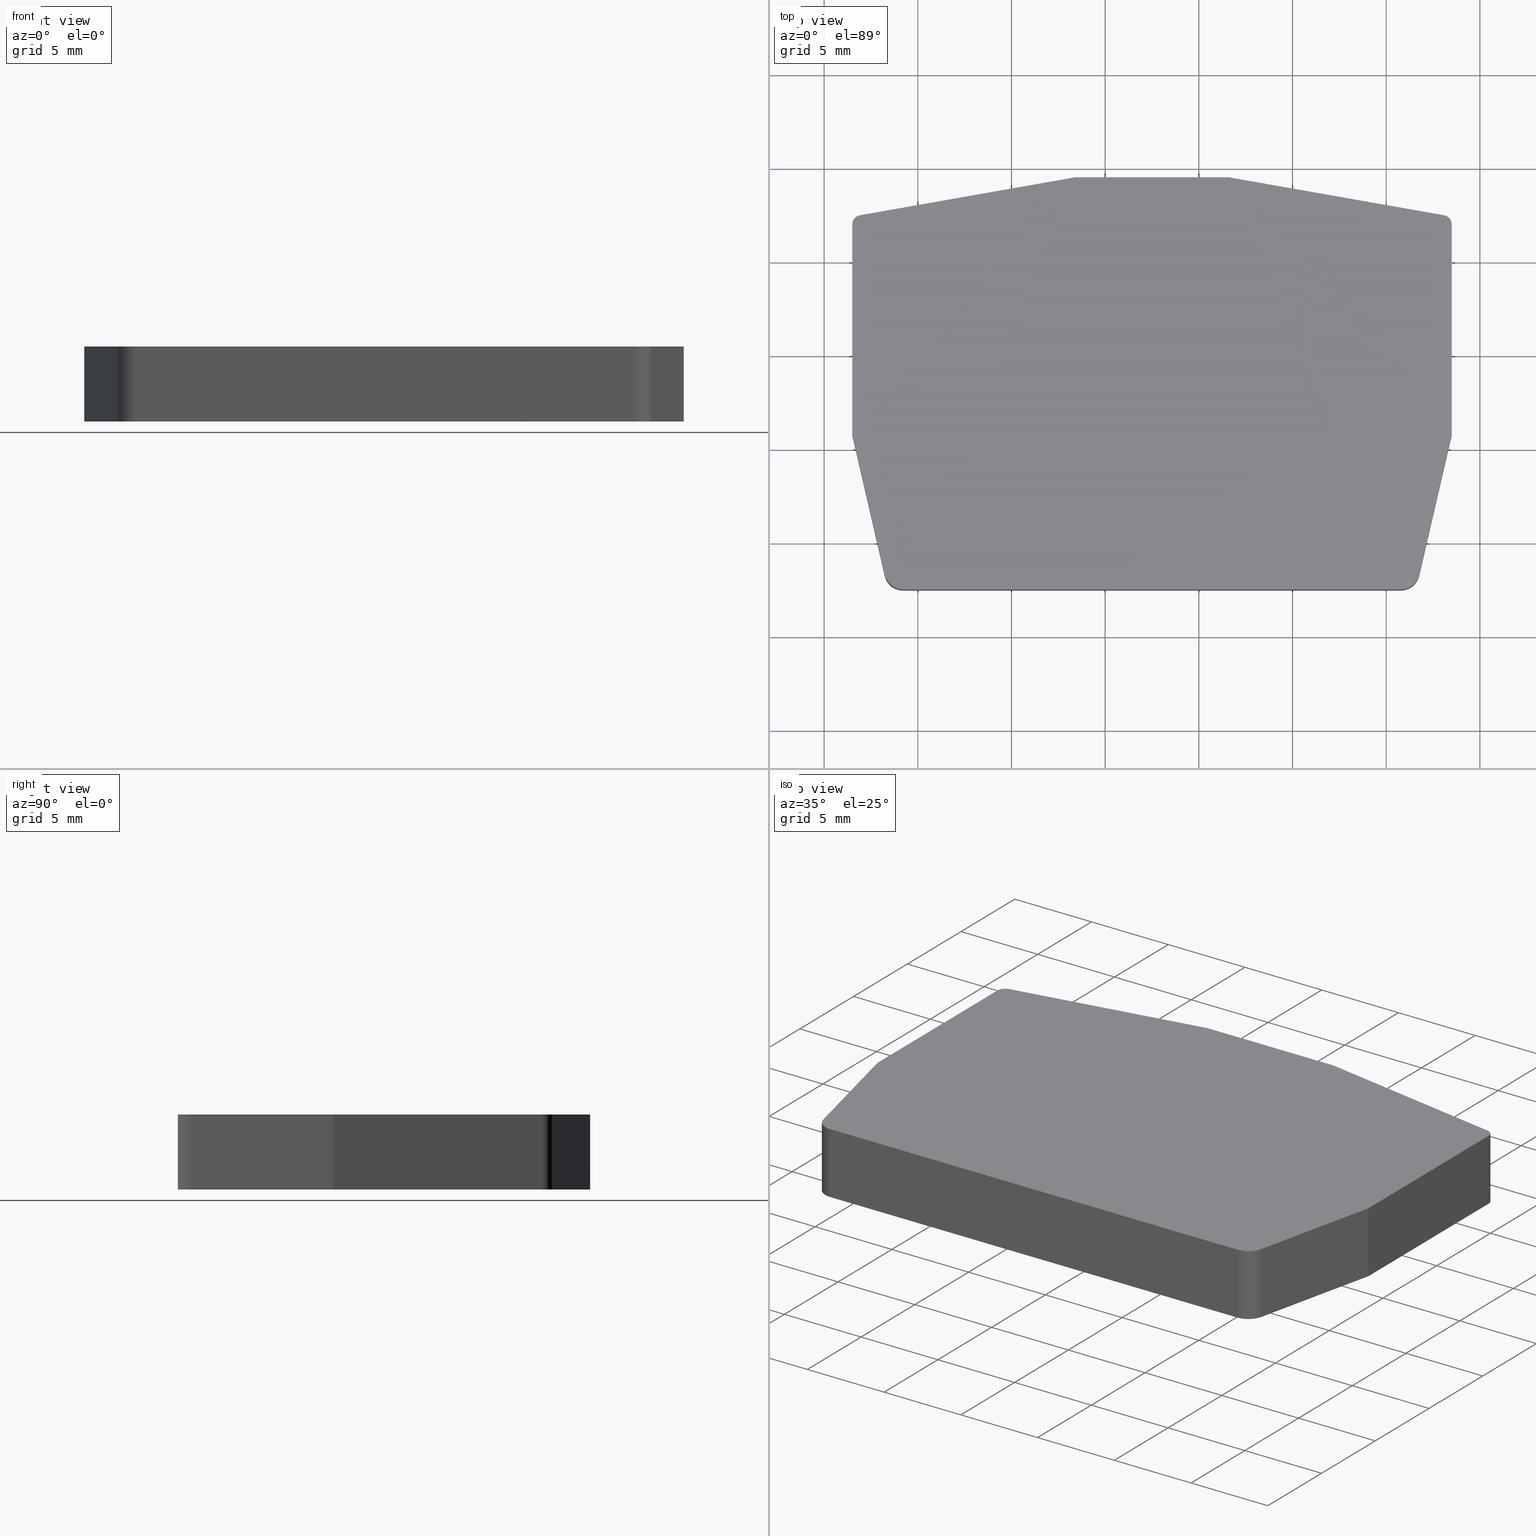
[diagram: canonical four-view strip — front | top / right | iso, engineering-drawing reading convention]
A machine part, canonical four-view strip (front | top / right | iso — engineering-drawing reading convention). The complete STEP part file that produces these views, byte-faithful:
ISO-10303-21;
HEADER;
FILE_DESCRIPTION(('SolidDesigner STEP Export'),'2;1');
FILE_NAME('3024177_D-MZB_1.5-select.stp','2017-06-02T 8:12:56',(''),('')
,'Creo Elements/Direct Modeling STEP processor for AP214 (Solid Model)',
'Creo Elements/Direct Modeling 18.1G  27-Feb-2015 (C) Parametric Technol
ogy GmbH','');
FILE_SCHEMA(('AUTOMOTIVE_DESIGN { 1 0 10303 214 1 1 1 1 }'));
ENDSEC;
DATA;
#10=CARTESIAN_POINT('',(0.,0.,0.));
#20=DIRECTION('',(0.,0.,1.));
#30=DIRECTION('',(1.,0.,0.));
#40=AXIS2_PLACEMENT_3D('',#10,#20,#30);
#50=PLANE('',#40);
#60=CARTESIAN_POINT('',(-47.2523277467479,22.0193156614077,0.));
#70=DIRECTION('',(0.984807753012205,-0.173648177666947,0.));
#80=VECTOR('',#70,1.);
#90=LINE('',#60,#80);
#100=CARTESIAN_POINT('',(-47.2523277467479,22.0193156614077,0.));
#110=VERTEX_POINT('',#100);
#120=CARTESIAN_POINT('',(-35.7655036579123,19.9938786518939,0.));
#130=VERTEX_POINT('',#120);
#140=EDGE_CURVE('',#110,#130,#90,.T.);
#150=ORIENTED_EDGE('',*,*,#140,.T.);
#160=CARTESIAN_POINT('',(-55.4523277467475,22.0193156614077,0.));
#170=DIRECTION('',(1.,0.,0.));
#180=VECTOR('',#170,1.);
#190=LINE('',#160,#180);
#200=CARTESIAN_POINT('',(-55.4523277467475,22.0193156614077,0.));
#210=VERTEX_POINT('',#200);
#220=EDGE_CURVE('',#210,#110,#190,.T.);
#230=ORIENTED_EDGE('',*,*,#220,.T.);
#240=CARTESIAN_POINT('',(-66.9391518355831,19.9938786518939,0.));
#250=DIRECTION('',(0.984807753012205,0.173648177666947,0.));
#260=VECTOR('',#250,1.);
#270=LINE('',#240,#260);
#280=CARTESIAN_POINT('',(-66.9391518355831,19.9938786518939,0.));
#290=VERTEX_POINT('',#280);
#300=EDGE_CURVE('',#290,#210,#270,.T.);
#310=ORIENTED_EDGE('',*,*,#300,.T.);
#320=CARTESIAN_POINT('',(-66.8523277467496,19.5014747753878,0.));
#330=DIRECTION('',(0.,0.,1.));
#340=DIRECTION('',(1.,0.,0.));
#350=AXIS2_PLACEMENT_3D('',#320,#330,#340);
#360=CIRCLE('',#350,0.499999999999998);
#370=CARTESIAN_POINT('',(-67.3523277467496,19.5014747753878,0.));
#380=VERTEX_POINT('',#370);
#390=EDGE_CURVE('',#290,#380,#360,.T.);
#400=ORIENTED_EDGE('',*,*,#390,.F.);
#410=CARTESIAN_POINT('',(-67.3523277467496,8.31931566140767,0.));
#420=DIRECTION('',(2.54170139600954E-15,1.,0.));
#430=VECTOR('',#420,1.);
#440=LINE('',#410,#430);
#450=CARTESIAN_POINT('',(-67.3523277467496,8.31931566140767,0.));
#460=VERTEX_POINT('',#450);
#470=EDGE_CURVE('',#460,#380,#440,.T.);
#480=ORIENTED_EDGE('',*,*,#470,.T.);
#490=CARTESIAN_POINT('',(-65.6150559085246,0.794364607063827,0.));
#500=DIRECTION('',(-0.224951054343896,0.974370064785228,0.));
#510=VECTOR('',#500,1.);
#520=LINE('',#490,#510);
#530=CARTESIAN_POINT('',(-65.6150559085246,0.794364607063827,0.));
#540=VERTEX_POINT('',#530);
#550=EDGE_CURVE('',#540,#460,#520,.T.);
#560=ORIENTED_EDGE('',*,*,#550,.T.);
#570=CARTESIAN_POINT('',(-64.6406858437394,1.01931566140772,0.));
#580=DIRECTION('',(0.,0.,1.));
#590=DIRECTION('',(1.,0.,0.));
#600=AXIS2_PLACEMENT_3D('',#570,#580,#590);
#610=CIRCLE('',#600,1.);
#620=CARTESIAN_POINT('',(-64.6406858437394,0.0193156614077168,0.));
#630=VERTEX_POINT('',#620);
#640=EDGE_CURVE('',#540,#630,#610,.T.);
#650=ORIENTED_EDGE('',*,*,#640,.F.);
#660=CARTESIAN_POINT('',(-64.6406858437394,0.0193156614077168,0.));
#670=DIRECTION('',(1.,0.,0.));
#680=VECTOR('',#670,1.);
#690=LINE('',#660,#680);
#700=CARTESIAN_POINT('',(-38.063969649756,0.0193156614077168,0.));
#710=VERTEX_POINT('',#700);
#720=EDGE_CURVE('',#630,#710,#690,.T.);
#730=ORIENTED_EDGE('',*,*,#720,.F.);
#740=CARTESIAN_POINT('',(-38.063969649756,1.01931566140772,0.));
#750=DIRECTION('',(0.,0.,1.));
#760=DIRECTION('',(1.,0.,0.));
#770=AXIS2_PLACEMENT_3D('',#740,#750,#760);
#780=CIRCLE('',#770,1.);
#790=CARTESIAN_POINT('',(-37.0895995849707,0.794364607063827,0.));
#800=VERTEX_POINT('',#790);
#810=EDGE_CURVE('',#710,#800,#780,.T.);
#820=ORIENTED_EDGE('',*,*,#810,.F.);
#830=CARTESIAN_POINT('',(-35.3523277467458,8.31931566140769,0.));
#840=DIRECTION('',(-0.224951054343888,-0.97437006478523,0.));
#850=VECTOR('',#840,1.);
#860=LINE('',#830,#850);
#870=CARTESIAN_POINT('',(-35.3523277467458,8.31931566140769,0.));
#880=VERTEX_POINT('',#870);
#890=EDGE_CURVE('',#880,#800,#860,.T.);
#900=ORIENTED_EDGE('',*,*,#890,.T.);
#910=CARTESIAN_POINT('',(-35.3523277467458,19.5014747753878,0.));
#920=DIRECTION('',(0.,-1.,0.));
#930=VECTOR('',#920,1.);
#940=LINE('',#910,#930);
#950=CARTESIAN_POINT('',(-35.3523277467458,19.5014747753878,0.));
#960=VERTEX_POINT('',#950);
#970=EDGE_CURVE('',#960,#880,#940,.T.);
#980=ORIENTED_EDGE('',*,*,#970,.T.);
#990=CARTESIAN_POINT('',(-35.8523277467458,19.5014747753878,0.));
#1000=DIRECTION('',(0.,0.,1.));
#1010=DIRECTION('',(1.,0.,0.));
#1020=AXIS2_PLACEMENT_3D('',#990,#1000,#1010);
#1030=CIRCLE('',#1020,0.5);
#1040=EDGE_CURVE('',#960,#130,#1030,.T.);
#1050=ORIENTED_EDGE('',*,*,#1040,.F.);
#1060=EDGE_LOOP('',(#1050,#980,#900,#820,#730,#650,#560,#480,#400,#310,
#230,#150));
#1070=FACE_OUTER_BOUND('',#1060,.T.);
#1080=ADVANCED_FACE('',(#1070),#50,.F.);
#1090=COLOUR_RGB('',0.560784339904785,0.588235318660736,
0.600000023841858);
#1100=FILL_AREA_STYLE_COLOUR('',#1090);
#1110=FILL_AREA_STYLE('',(#1100));
#1120=SURFACE_STYLE_FILL_AREA(#1110);
#1130=SURFACE_SIDE_STYLE('',(#1120));
#1140=SURFACE_STYLE_USAGE(.BOTH.,#1130);
#1150=PRESENTATION_STYLE_ASSIGNMENT((#1140));
#1160=CARTESIAN_POINT('',(0.,0.,4.));
#1170=DIRECTION('',(0.,0.,1.));
#1180=DIRECTION('',(1.,0.,0.));
#1190=AXIS2_PLACEMENT_3D('',#1160,#1170,#1180);
#1200=PLANE('',#1190);
#1210=CARTESIAN_POINT('',(-35.8523277467458,19.5014747753878,4.));
#1220=DIRECTION('',(0.,0.,1.));
#1230=DIRECTION('',(1.,0.,0.));
#1240=AXIS2_PLACEMENT_3D('',#1210,#1220,#1230);
#1250=CIRCLE('',#1240,0.5);
#1260=CARTESIAN_POINT('',(-35.3523277467458,19.5014747753878,4.));
#1270=VERTEX_POINT('',#1260);
#1280=CARTESIAN_POINT('',(-35.7655036579123,19.9938786518939,4.));
#1290=VERTEX_POINT('',#1280);
#1300=EDGE_CURVE('',#1270,#1290,#1250,.T.);
#1310=ORIENTED_EDGE('',*,*,#1300,.T.);
#1320=CARTESIAN_POINT('',(-35.3523277467458,19.5014747753878,4.));
#1330=DIRECTION('',(0.,-1.,0.));
#1340=VECTOR('',#1330,1.);
#1350=LINE('',#1320,#1340);
#1360=CARTESIAN_POINT('',(-35.3523277467458,8.31931566140769,4.));
#1370=VERTEX_POINT('',#1360);
#1380=EDGE_CURVE('',#1270,#1370,#1350,.T.);
#1390=ORIENTED_EDGE('',*,*,#1380,.F.);
#1400=CARTESIAN_POINT('',(-35.3523277467458,8.31931566140769,4.));
#1410=DIRECTION('',(-0.224951054343888,-0.97437006478523,0.));
#1420=VECTOR('',#1410,1.);
#1430=LINE('',#1400,#1420);
#1440=CARTESIAN_POINT('',(-37.0895995849707,0.794364607063827,4.));
#1450=VERTEX_POINT('',#1440);
#1460=EDGE_CURVE('',#1370,#1450,#1430,.T.);
#1470=ORIENTED_EDGE('',*,*,#1460,.F.);
#1480=CARTESIAN_POINT('',(-38.063969649756,1.01931566140772,4.));
#1490=DIRECTION('',(0.,0.,1.));
#1500=DIRECTION('',(1.,0.,0.));
#1510=AXIS2_PLACEMENT_3D('',#1480,#1490,#1500);
#1520=CIRCLE('',#1510,1.);
#1530=CARTESIAN_POINT('',(-38.063969649756,0.0193156614077168,4.));
#1540=VERTEX_POINT('',#1530);
#1550=EDGE_CURVE('',#1540,#1450,#1520,.T.);
#1560=ORIENTED_EDGE('',*,*,#1550,.T.);
#1570=CARTESIAN_POINT('',(-64.6406858437394,0.0193156614077168,4.));
#1580=DIRECTION('',(1.,0.,0.));
#1590=VECTOR('',#1580,1.);
#1600=LINE('',#1570,#1590);
#1610=CARTESIAN_POINT('',(-64.6406858437394,0.0193156614077168,4.));
#1620=VERTEX_POINT('',#1610);
#1630=EDGE_CURVE('',#1620,#1540,#1600,.T.);
#1640=ORIENTED_EDGE('',*,*,#1630,.T.);
#1650=CARTESIAN_POINT('',(-64.6406858437394,1.01931566140772,4.));
#1660=DIRECTION('',(0.,0.,1.));
#1670=DIRECTION('',(1.,0.,0.));
#1680=AXIS2_PLACEMENT_3D('',#1650,#1660,#1670);
#1690=CIRCLE('',#1680,1.);
#1700=CARTESIAN_POINT('',(-65.6150559085246,0.794364607063827,4.));
#1710=VERTEX_POINT('',#1700);
#1720=EDGE_CURVE('',#1710,#1620,#1690,.T.);
#1730=ORIENTED_EDGE('',*,*,#1720,.T.);
#1740=CARTESIAN_POINT('',(-65.6150559085246,0.794364607063827,4.));
#1750=DIRECTION('',(-0.224951054343896,0.974370064785228,0.));
#1760=VECTOR('',#1750,1.);
#1770=LINE('',#1740,#1760);
#1780=CARTESIAN_POINT('',(-67.3523277467496,8.31931566140767,4.));
#1790=VERTEX_POINT('',#1780);
#1800=EDGE_CURVE('',#1710,#1790,#1770,.T.);
#1810=ORIENTED_EDGE('',*,*,#1800,.F.);
#1820=CARTESIAN_POINT('',(-67.3523277467496,8.31931566140767,4.));
#1830=DIRECTION('',(2.54170139600954E-15,1.,0.));
#1840=VECTOR('',#1830,1.);
#1850=LINE('',#1820,#1840);
#1860=CARTESIAN_POINT('',(-67.3523277467496,19.5014747753878,4.));
#1870=VERTEX_POINT('',#1860);
#1880=EDGE_CURVE('',#1790,#1870,#1850,.T.);
#1890=ORIENTED_EDGE('',*,*,#1880,.F.);
#1900=CARTESIAN_POINT('',(-66.8523277467496,19.5014747753878,4.));
#1910=DIRECTION('',(0.,0.,1.));
#1920=DIRECTION('',(1.,0.,0.));
#1930=AXIS2_PLACEMENT_3D('',#1900,#1910,#1920);
#1940=CIRCLE('',#1930,0.499999999999998);
#1950=CARTESIAN_POINT('',(-66.9391518355831,19.9938786518939,4.));
#1960=VERTEX_POINT('',#1950);
#1970=EDGE_CURVE('',#1960,#1870,#1940,.T.);
#1980=ORIENTED_EDGE('',*,*,#1970,.T.);
#1990=CARTESIAN_POINT('',(-66.9391518355831,19.9938786518939,4.));
#2000=DIRECTION('',(0.984807753012205,0.173648177666947,0.));
#2010=VECTOR('',#2000,1.);
#2020=LINE('',#1990,#2010);
#2030=CARTESIAN_POINT('',(-55.4523277467475,22.0193156614077,4.));
#2040=VERTEX_POINT('',#2030);
#2050=EDGE_CURVE('',#1960,#2040,#2020,.T.);
#2060=ORIENTED_EDGE('',*,*,#2050,.F.);
#2070=CARTESIAN_POINT('',(-55.4523277467475,22.0193156614077,4.));
#2080=DIRECTION('',(1.,0.,0.));
#2090=VECTOR('',#2080,1.);
#2100=LINE('',#2070,#2090);
#2110=CARTESIAN_POINT('',(-47.2523277467479,22.0193156614077,4.));
#2120=VERTEX_POINT('',#2110);
#2130=EDGE_CURVE('',#2040,#2120,#2100,.T.);
#2140=ORIENTED_EDGE('',*,*,#2130,.F.);
#2150=CARTESIAN_POINT('',(-47.2523277467479,22.0193156614077,4.));
#2160=DIRECTION('',(0.984807753012205,-0.173648177666947,0.));
#2170=VECTOR('',#2160,1.);
#2180=LINE('',#2150,#2170);
#2190=EDGE_CURVE('',#2120,#1290,#2180,.T.);
#2200=ORIENTED_EDGE('',*,*,#2190,.F.);
#2210=EDGE_LOOP('',(#2200,#2140,#2060,#1980,#1890,#1810,#1730,#1640,
#1560,#1470,#1390,#1310));
#2220=FACE_OUTER_BOUND('',#2210,.T.);
#2230=ADVANCED_FACE('',(#2220),#1200,.T.);
#2240=COLOUR_RGB('',0.560784339904785,0.588235318660736,
0.600000023841858);
#2250=FILL_AREA_STYLE_COLOUR('',#2240);
#2260=FILL_AREA_STYLE('',(#2250));
#2270=SURFACE_STYLE_FILL_AREA(#2260);
#2280=SURFACE_SIDE_STYLE('',(#2270));
#2290=SURFACE_STYLE_USAGE(.BOTH.,#2280);
#2300=PRESENTATION_STYLE_ASSIGNMENT((#2290));
#2310=CARTESIAN_POINT('',(-38.063969649756,0.0193156614077168,0.));
#2320=DIRECTION('',(-0.,-1.,-0.));
#2330=DIRECTION('',(-1.,0.,0.));
#2340=AXIS2_PLACEMENT_3D('',#2310,#2320,#2330);
#2350=PLANE('',#2340);
#2360=CARTESIAN_POINT('',(-64.6406858437394,0.0193156614077168,0.));
#2370=DIRECTION('',(0.,0.,1.));
#2380=VECTOR('',#2370,1.);
#2390=LINE('',#2360,#2380);
#2400=EDGE_CURVE('',#630,#1620,#2390,.T.);
#2410=ORIENTED_EDGE('',*,*,#2400,.F.);
#2420=ORIENTED_EDGE('',*,*,#1630,.F.);
#2430=CARTESIAN_POINT('',(-38.063969649756,0.0193156614077168,0.));
#2440=DIRECTION('',(0.,0.,1.));
#2450=VECTOR('',#2440,1.);
#2460=LINE('',#2430,#2450);
#2470=EDGE_CURVE('',#710,#1540,#2460,.T.);
#2480=ORIENTED_EDGE('',*,*,#2470,.T.);
#2490=ORIENTED_EDGE('',*,*,#720,.T.);
#2500=EDGE_LOOP('',(#2490,#2480,#2420,#2410));
#2510=FACE_OUTER_BOUND('',#2500,.T.);
#2520=ADVANCED_FACE('',(#2510),#2350,.T.);
#2530=COLOUR_RGB('',0.560784339904785,0.588235318660736,
0.600000023841858);
#2540=FILL_AREA_STYLE_COLOUR('',#2530);
#2550=FILL_AREA_STYLE('',(#2540));
#2560=SURFACE_STYLE_FILL_AREA(#2550);
#2570=SURFACE_SIDE_STYLE('',(#2560));
#2580=SURFACE_STYLE_USAGE(.BOTH.,#2570);
#2590=PRESENTATION_STYLE_ASSIGNMENT((#2580));
#2600=CARTESIAN_POINT('',(-38.063969649756,1.01931566140772,0.));
#2610=DIRECTION('',(0.,0.,1.));
#2620=DIRECTION('',(1.,0.,0.));
#2630=AXIS2_PLACEMENT_3D('',#2600,#2610,#2620);
#2640=CYLINDRICAL_SURFACE('',#2630,1.);
#2650=ORIENTED_EDGE('',*,*,#2470,.F.);
#2660=ORIENTED_EDGE('',*,*,#1550,.F.);
#2670=CARTESIAN_POINT('',(-37.0895995849707,0.794364607063827,0.));
#2680=DIRECTION('',(0.,0.,1.));
#2690=VECTOR('',#2680,1.);
#2700=LINE('',#2670,#2690);
#2710=EDGE_CURVE('',#800,#1450,#2700,.T.);
#2720=ORIENTED_EDGE('',*,*,#2710,.T.);
#2730=ORIENTED_EDGE('',*,*,#810,.T.);
#2740=EDGE_LOOP('',(#2730,#2720,#2660,#2650));
#2750=FACE_OUTER_BOUND('',#2740,.T.);
#2760=ADVANCED_FACE('',(#2750),#2640,.T.);
#2770=COLOUR_RGB('',0.560784339904785,0.588235318660736,
0.600000023841858);
#2780=FILL_AREA_STYLE_COLOUR('',#2770);
#2790=FILL_AREA_STYLE('',(#2780));
#2800=SURFACE_STYLE_FILL_AREA(#2790);
#2810=SURFACE_SIDE_STYLE('',(#2800));
#2820=SURFACE_STYLE_USAGE(.BOTH.,#2810);
#2830=PRESENTATION_STYLE_ASSIGNMENT((#2820));
#2840=CARTESIAN_POINT('',(-35.3523277467458,8.31931566140769,0.));
#2850=DIRECTION('',(0.97437006478523,-0.224951054343888,0.));
#2860=DIRECTION('',(-0.224951054343888,-0.97437006478523,0.));
#2870=AXIS2_PLACEMENT_3D('',#2840,#2850,#2860);
#2880=PLANE('',#2870);
#2890=ORIENTED_EDGE('',*,*,#2710,.F.);
#2900=ORIENTED_EDGE('',*,*,#1460,.T.);
#2910=CARTESIAN_POINT('',(-35.3523277467458,8.31931566140769,0.));
#2920=DIRECTION('',(0.,0.,1.));
#2930=VECTOR('',#2920,1.);
#2940=LINE('',#2910,#2930);
#2950=EDGE_CURVE('',#880,#1370,#2940,.T.);
#2960=ORIENTED_EDGE('',*,*,#2950,.T.);
#2970=ORIENTED_EDGE('',*,*,#890,.F.);
#2980=EDGE_LOOP('',(#2970,#2960,#2900,#2890));
#2990=FACE_OUTER_BOUND('',#2980,.T.);
#3000=ADVANCED_FACE('',(#2990),#2880,.T.);
#3010=COLOUR_RGB('',0.560784339904785,0.588235318660736,
0.600000023841858);
#3020=FILL_AREA_STYLE_COLOUR('',#3010);
#3030=FILL_AREA_STYLE('',(#3020));
#3040=SURFACE_STYLE_FILL_AREA(#3030);
#3050=SURFACE_SIDE_STYLE('',(#3040));
#3060=SURFACE_STYLE_USAGE(.BOTH.,#3050);
#3070=PRESENTATION_STYLE_ASSIGNMENT((#3060));
#3080=CARTESIAN_POINT('',(-35.3523277467458,19.5014747753878,0.));
#3090=DIRECTION('',(1.,0.,0.));
#3100=DIRECTION('',(0.,-1.,0.));
#3110=AXIS2_PLACEMENT_3D('',#3080,#3090,#3100);
#3120=PLANE('',#3110);
#3130=ORIENTED_EDGE('',*,*,#2950,.F.);
#3140=ORIENTED_EDGE('',*,*,#1380,.T.);
#3150=CARTESIAN_POINT('',(-35.3523277467458,19.5014747753878,0.));
#3160=DIRECTION('',(0.,0.,1.));
#3170=VECTOR('',#3160,1.);
#3180=LINE('',#3150,#3170);
#3190=EDGE_CURVE('',#960,#1270,#3180,.T.);
#3200=ORIENTED_EDGE('',*,*,#3190,.T.);
#3210=ORIENTED_EDGE('',*,*,#970,.F.);
#3220=EDGE_LOOP('',(#3210,#3200,#3140,#3130));
#3230=FACE_OUTER_BOUND('',#3220,.T.);
#3240=ADVANCED_FACE('',(#3230),#3120,.T.);
#3250=COLOUR_RGB('',0.560784339904785,0.588235318660736,
0.600000023841858);
#3260=FILL_AREA_STYLE_COLOUR('',#3250);
#3270=FILL_AREA_STYLE('',(#3260));
#3280=SURFACE_STYLE_FILL_AREA(#3270);
#3290=SURFACE_SIDE_STYLE('',(#3280));
#3300=SURFACE_STYLE_USAGE(.BOTH.,#3290);
#3310=PRESENTATION_STYLE_ASSIGNMENT((#3300));
#3320=CARTESIAN_POINT('',(-35.8523277467458,19.5014747753878,0.));
#3330=DIRECTION('',(0.,0.,1.));
#3340=DIRECTION('',(1.,0.,0.));
#3350=AXIS2_PLACEMENT_3D('',#3320,#3330,#3340);
#3360=CYLINDRICAL_SURFACE('',#3350,0.5);
#3370=ORIENTED_EDGE('',*,*,#3190,.F.);
#3380=ORIENTED_EDGE('',*,*,#1300,.F.);
#3390=CARTESIAN_POINT('',(-35.7655036579123,19.9938786518939,0.));
#3400=DIRECTION('',(0.,0.,1.));
#3410=VECTOR('',#3400,1.);
#3420=LINE('',#3390,#3410);
#3430=EDGE_CURVE('',#130,#1290,#3420,.T.);
#3440=ORIENTED_EDGE('',*,*,#3430,.T.);
#3450=ORIENTED_EDGE('',*,*,#1040,.T.);
#3460=EDGE_LOOP('',(#3450,#3440,#3380,#3370));
#3470=FACE_OUTER_BOUND('',#3460,.T.);
#3480=ADVANCED_FACE('',(#3470),#3360,.T.);
#3490=COLOUR_RGB('',0.560784339904785,0.588235318660736,
0.600000023841858);
#3500=FILL_AREA_STYLE_COLOUR('',#3490);
#3510=FILL_AREA_STYLE('',(#3500));
#3520=SURFACE_STYLE_FILL_AREA(#3510);
#3530=SURFACE_SIDE_STYLE('',(#3520));
#3540=SURFACE_STYLE_USAGE(.BOTH.,#3530);
#3550=PRESENTATION_STYLE_ASSIGNMENT((#3540));
#3560=CARTESIAN_POINT('',(-47.2523277467479,22.0193156614077,0.));
#3570=DIRECTION('',(0.173648177666947,0.984807753012205,0.));
#3580=DIRECTION('',(0.984807753012205,-0.173648177666947,0.));
#3590=AXIS2_PLACEMENT_3D('',#3560,#3570,#3580);
#3600=PLANE('',#3590);
#3610=ORIENTED_EDGE('',*,*,#3430,.F.);
#3620=ORIENTED_EDGE('',*,*,#2190,.T.);
#3630=CARTESIAN_POINT('',(-47.2523277467479,22.0193156614077,0.));
#3640=DIRECTION('',(0.,0.,1.));
#3650=VECTOR('',#3640,1.);
#3660=LINE('',#3630,#3650);
#3670=EDGE_CURVE('',#110,#2120,#3660,.T.);
#3680=ORIENTED_EDGE('',*,*,#3670,.T.);
#3690=ORIENTED_EDGE('',*,*,#140,.F.);
#3700=EDGE_LOOP('',(#3690,#3680,#3620,#3610));
#3710=FACE_OUTER_BOUND('',#3700,.T.);
#3720=ADVANCED_FACE('',(#3710),#3600,.T.);
#3730=COLOUR_RGB('',0.560784339904785,0.588235318660736,
0.600000023841858);
#3740=FILL_AREA_STYLE_COLOUR('',#3730);
#3750=FILL_AREA_STYLE('',(#3740));
#3760=SURFACE_STYLE_FILL_AREA(#3750);
#3770=SURFACE_SIDE_STYLE('',(#3760));
#3780=SURFACE_STYLE_USAGE(.BOTH.,#3770);
#3790=PRESENTATION_STYLE_ASSIGNMENT((#3780));
#3800=CARTESIAN_POINT('',(-55.4523277467475,22.0193156614077,0.));
#3810=DIRECTION('',(-0.,1.,0.));
#3820=DIRECTION('',(1.,0.,0.));
#3830=AXIS2_PLACEMENT_3D('',#3800,#3810,#3820);
#3840=PLANE('',#3830);
#3850=ORIENTED_EDGE('',*,*,#3670,.F.);
#3860=ORIENTED_EDGE('',*,*,#2130,.T.);
#3870=CARTESIAN_POINT('',(-55.4523277467475,22.0193156614077,0.));
#3880=DIRECTION('',(0.,0.,1.));
#3890=VECTOR('',#3880,1.);
#3900=LINE('',#3870,#3890);
#3910=EDGE_CURVE('',#210,#2040,#3900,.T.);
#3920=ORIENTED_EDGE('',*,*,#3910,.T.);
#3930=ORIENTED_EDGE('',*,*,#220,.F.);
#3940=EDGE_LOOP('',(#3930,#3920,#3860,#3850));
#3950=FACE_OUTER_BOUND('',#3940,.T.);
#3960=ADVANCED_FACE('',(#3950),#3840,.T.);
#3970=COLOUR_RGB('',0.560784339904785,0.588235318660736,
0.600000023841858);
#3980=FILL_AREA_STYLE_COLOUR('',#3970);
#3990=FILL_AREA_STYLE('',(#3980));
#4000=SURFACE_STYLE_FILL_AREA(#3990);
#4010=SURFACE_SIDE_STYLE('',(#4000));
#4020=SURFACE_STYLE_USAGE(.BOTH.,#4010);
#4030=PRESENTATION_STYLE_ASSIGNMENT((#4020));
#4040=CARTESIAN_POINT('',(-66.9391518355831,19.9938786518939,0.));
#4050=DIRECTION('',(-0.173648177666947,0.984807753012205,0.));
#4060=DIRECTION('',(0.984807753012205,0.173648177666947,0.));
#4070=AXIS2_PLACEMENT_3D('',#4040,#4050,#4060);
#4080=PLANE('',#4070);
#4090=ORIENTED_EDGE('',*,*,#3910,.F.);
#4100=ORIENTED_EDGE('',*,*,#2050,.T.);
#4110=CARTESIAN_POINT('',(-66.9391518355831,19.9938786518939,0.));
#4120=DIRECTION('',(0.,0.,1.));
#4130=VECTOR('',#4120,1.);
#4140=LINE('',#4110,#4130);
#4150=EDGE_CURVE('',#290,#1960,#4140,.T.);
#4160=ORIENTED_EDGE('',*,*,#4150,.T.);
#4170=ORIENTED_EDGE('',*,*,#300,.F.);
#4180=EDGE_LOOP('',(#4170,#4160,#4100,#4090));
#4190=FACE_OUTER_BOUND('',#4180,.T.);
#4200=ADVANCED_FACE('',(#4190),#4080,.T.);
#4210=COLOUR_RGB('',0.560784339904785,0.588235318660736,
0.600000023841858);
#4220=FILL_AREA_STYLE_COLOUR('',#4210);
#4230=FILL_AREA_STYLE('',(#4220));
#4240=SURFACE_STYLE_FILL_AREA(#4230);
#4250=SURFACE_SIDE_STYLE('',(#4240));
#4260=SURFACE_STYLE_USAGE(.BOTH.,#4250);
#4270=PRESENTATION_STYLE_ASSIGNMENT((#4260));
#4280=CARTESIAN_POINT('',(-66.8523277467496,19.5014747753878,0.));
#4290=DIRECTION('',(0.,0.,1.));
#4300=DIRECTION('',(1.,0.,0.));
#4310=AXIS2_PLACEMENT_3D('',#4280,#4290,#4300);
#4320=CYLINDRICAL_SURFACE('',#4310,0.499999999999998);
#4330=ORIENTED_EDGE('',*,*,#4150,.F.);
#4340=ORIENTED_EDGE('',*,*,#1970,.F.);
#4350=CARTESIAN_POINT('',(-67.3523277467496,19.5014747753878,0.));
#4360=DIRECTION('',(0.,0.,1.));
#4370=VECTOR('',#4360,1.);
#4380=LINE('',#4350,#4370);
#4390=EDGE_CURVE('',#380,#1870,#4380,.T.);
#4400=ORIENTED_EDGE('',*,*,#4390,.T.);
#4410=ORIENTED_EDGE('',*,*,#390,.T.);
#4420=EDGE_LOOP('',(#4410,#4400,#4340,#4330));
#4430=FACE_OUTER_BOUND('',#4420,.T.);
#4440=ADVANCED_FACE('',(#4430),#4320,.T.);
#4450=COLOUR_RGB('',0.560784339904785,0.588235318660736,
0.600000023841858);
#4460=FILL_AREA_STYLE_COLOUR('',#4450);
#4470=FILL_AREA_STYLE('',(#4460));
#4480=SURFACE_STYLE_FILL_AREA(#4470);
#4490=SURFACE_SIDE_STYLE('',(#4480));
#4500=SURFACE_STYLE_USAGE(.BOTH.,#4490);
#4510=PRESENTATION_STYLE_ASSIGNMENT((#4500));
#4520=CARTESIAN_POINT('',(-67.3523277467496,8.31931566140767,0.));
#4530=DIRECTION('',(-1.,2.54170139600954E-15,0.));
#4540=DIRECTION('',(2.54170139600954E-15,1.,0.));
#4550=AXIS2_PLACEMENT_3D('',#4520,#4530,#4540);
#4560=PLANE('',#4550);
#4570=ORIENTED_EDGE('',*,*,#4390,.F.);
#4580=ORIENTED_EDGE('',*,*,#1880,.T.);
#4590=CARTESIAN_POINT('',(-67.3523277467496,8.31931566140767,0.));
#4600=DIRECTION('',(0.,0.,1.));
#4610=VECTOR('',#4600,1.);
#4620=LINE('',#4590,#4610);
#4630=EDGE_CURVE('',#460,#1790,#4620,.T.);
#4640=ORIENTED_EDGE('',*,*,#4630,.T.);
#4650=ORIENTED_EDGE('',*,*,#470,.F.);
#4660=EDGE_LOOP('',(#4650,#4640,#4580,#4570));
#4670=FACE_OUTER_BOUND('',#4660,.T.);
#4680=ADVANCED_FACE('',(#4670),#4560,.T.);
#4690=COLOUR_RGB('',0.560784339904785,0.588235318660736,
0.600000023841858);
#4700=FILL_AREA_STYLE_COLOUR('',#4690);
#4710=FILL_AREA_STYLE('',(#4700));
#4720=SURFACE_STYLE_FILL_AREA(#4710);
#4730=SURFACE_SIDE_STYLE('',(#4720));
#4740=SURFACE_STYLE_USAGE(.BOTH.,#4730);
#4750=PRESENTATION_STYLE_ASSIGNMENT((#4740));
#4760=CARTESIAN_POINT('',(-65.6150559085246,0.794364607063827,0.));
#4770=DIRECTION('',(-0.974370064785228,-0.224951054343896,-0.));
#4780=DIRECTION('',(-0.224951054343896,0.974370064785228,0.));
#4790=AXIS2_PLACEMENT_3D('',#4760,#4770,#4780);
#4800=PLANE('',#4790);
#4810=ORIENTED_EDGE('',*,*,#4630,.F.);
#4820=ORIENTED_EDGE('',*,*,#1800,.T.);
#4830=CARTESIAN_POINT('',(-65.6150559085246,0.794364607063827,0.));
#4840=DIRECTION('',(0.,0.,1.));
#4850=VECTOR('',#4840,1.);
#4860=LINE('',#4830,#4850);
#4870=EDGE_CURVE('',#540,#1710,#4860,.T.);
#4880=ORIENTED_EDGE('',*,*,#4870,.T.);
#4890=ORIENTED_EDGE('',*,*,#550,.F.);
#4900=EDGE_LOOP('',(#4890,#4880,#4820,#4810));
#4910=FACE_OUTER_BOUND('',#4900,.T.);
#4920=ADVANCED_FACE('',(#4910),#4800,.T.);
#4930=COLOUR_RGB('',0.560784339904785,0.588235318660736,
0.600000023841858);
#4940=FILL_AREA_STYLE_COLOUR('',#4930);
#4950=FILL_AREA_STYLE('',(#4940));
#4960=SURFACE_STYLE_FILL_AREA(#4950);
#4970=SURFACE_SIDE_STYLE('',(#4960));
#4980=SURFACE_STYLE_USAGE(.BOTH.,#4970);
#4990=PRESENTATION_STYLE_ASSIGNMENT((#4980));
#5000=CARTESIAN_POINT('',(-64.6406858437394,1.01931566140772,0.));
#5010=DIRECTION('',(0.,0.,1.));
#5020=DIRECTION('',(1.,0.,0.));
#5030=AXIS2_PLACEMENT_3D('',#5000,#5010,#5020);
#5040=CYLINDRICAL_SURFACE('',#5030,1.);
#5050=ORIENTED_EDGE('',*,*,#4870,.F.);
#5060=ORIENTED_EDGE('',*,*,#1720,.F.);
#5070=ORIENTED_EDGE('',*,*,#2400,.T.);
#5080=ORIENTED_EDGE('',*,*,#640,.T.);
#5090=EDGE_LOOP('',(#5080,#5070,#5060,#5050));
#5100=FACE_OUTER_BOUND('',#5090,.T.);
#5110=ADVANCED_FACE('',(#5100),#5040,.T.);
#5120=COLOUR_RGB('',0.560784339904785,0.588235318660736,
0.600000023841858);
#5130=FILL_AREA_STYLE_COLOUR('',#5120);
#5140=FILL_AREA_STYLE('',(#5130));
#5150=SURFACE_STYLE_FILL_AREA(#5140);
#5160=SURFACE_SIDE_STYLE('',(#5150));
#5170=SURFACE_STYLE_USAGE(.BOTH.,#5160);
#5180=PRESENTATION_STYLE_ASSIGNMENT((#5170));
#5190=CLOSED_SHELL('',(#2520,#2760,#3000,#3240,#3480,#3720,#3960,#4200,
#4440,#4680,#4920,#5110,#2230,#1080));
#5200=MANIFOLD_SOLID_BREP('',#5190);
#5210=CARTESIAN_POINT('',(0.,0.,0.));
#5220=DIRECTION('',(0.,0.,1.));
#5230=DIRECTION('',(1.,0.,0.));
#5240=AXIS2_PLACEMENT_3D('',#5210,#5220,#5230);
#5250=APPLICATION_CONTEXT(' ');
#5260=APPLICATION_PROTOCOL_DEFINITION(' ','automotive_design',1998,#5250
);
#5270=PRODUCT_CONTEXT('',#5250,'mechanical');
#5280=PRODUCT_DEFINITION_CONTEXT('part definition',#5250,'design');
#5290=PRODUCT('3024177_D-MZB_1.5-select','3024177_D-MZB_1.5-select','',(
#5270));
#5300=PRODUCT_RELATED_PRODUCT_CATEGORY('part',' ',(#5290));
#5310=PRODUCT_DEFINITION_FORMATION_WITH_SPECIFIED_SOURCE('','',#5290,
.BOUGHT.);
#5320=PRODUCT_DEFINITION('',' ',#5310,#5280);
#5330=PRODUCT_DEFINITION_SHAPE('','',#5320);
#5340=DIMENSIONAL_EXPONENTS(1.,0.,0.,0.,0.,0.,0.);
#5350=DIMENSIONAL_EXPONENTS(0.,0.,0.,0.,0.,0.,0.);
#5360=DIMENSIONAL_EXPONENTS(0.,0.,0.,0.,0.,0.,0.);
#5370=(LENGTH_UNIT() NAMED_UNIT(*) SI_UNIT(.MILLI.,.METRE.));
#5380=(NAMED_UNIT(*) PLANE_ANGLE_UNIT() SI_UNIT($,.RADIAN.));
#5390=(NAMED_UNIT(*) SI_UNIT($,.STERADIAN.) SOLID_ANGLE_UNIT());
#5400=(GEOMETRIC_REPRESENTATION_CONTEXT(3) 
GLOBAL_UNCERTAINTY_ASSIGNED_CONTEXT((#5410)) 
GLOBAL_UNIT_ASSIGNED_CONTEXT((#5370,#5380,#5390)) REPRESENTATION_CONTEXT
('',''));
#5410=UNCERTAINTY_MEASURE_WITH_UNIT(LENGTH_MEASURE(1.E-6),#5370,
'distance_accuracy_value','maximum gap value');
#5420=ADVANCED_BREP_SHAPE_REPRESENTATION('',(#5240,#5200),#5400);
#5430=SHAPE_DEFINITION_REPRESENTATION(#5330,#5420);
#5440=COLOUR_RGB('',0.560784339904785,0.588235318660736,
0.600000023841858);
#5450=FILL_AREA_STYLE_COLOUR('',#5440);
#5460=FILL_AREA_STYLE('',(#5450));
#5470=SURFACE_STYLE_FILL_AREA(#5460);
#5480=SURFACE_SIDE_STYLE('',(#5470));
#5490=SURFACE_STYLE_USAGE(.BOTH.,#5480);
#5500=PRESENTATION_STYLE_ASSIGNMENT((#5490));
#5510=STYLED_ITEM('',(#5500),#5200);
#5520=OVER_RIDING_STYLED_ITEM('',(#1150),#1080,#5510);
#5530=OVER_RIDING_STYLED_ITEM('',(#2300),#2230,#5510);
#5540=OVER_RIDING_STYLED_ITEM('',(#2590),#2520,#5510);
#5550=OVER_RIDING_STYLED_ITEM('',(#2830),#2760,#5510);
#5560=OVER_RIDING_STYLED_ITEM('',(#3070),#3000,#5510);
#5570=OVER_RIDING_STYLED_ITEM('',(#3310),#3240,#5510);
#5580=OVER_RIDING_STYLED_ITEM('',(#3550),#3480,#5510);
#5590=OVER_RIDING_STYLED_ITEM('',(#3790),#3720,#5510);
#5600=OVER_RIDING_STYLED_ITEM('',(#4030),#3960,#5510);
#5610=OVER_RIDING_STYLED_ITEM('',(#4270),#4200,#5510);
#5620=OVER_RIDING_STYLED_ITEM('',(#4510),#4440,#5510);
#5630=OVER_RIDING_STYLED_ITEM('',(#4750),#4680,#5510);
#5640=OVER_RIDING_STYLED_ITEM('',(#4990),#4920,#5510);
#5650=OVER_RIDING_STYLED_ITEM('',(#5180),#5110,#5510);
#5660=DRAUGHTING_MODEL('',(#5510,#5520,#5530,#5540,#5550,#5560,#5570,
#5580,#5590,#5600,#5610,#5620,#5630,#5640,#5650),#5400);
#5670=CARTESIAN_POINT('',(43.852327746746,2.48068433859263,0.));
#5680=DIRECTION('',(0.,0.,1.));
#5690=DIRECTION('',(1.,0.,0.));
#5700=AXIS2_PLACEMENT_3D('',#5670,#5680,#5690);
#5710=ITEM_DEFINED_TRANSFORMATION('3024177_D-MZB_1.5-select','',#5240,
#5700);
#5720=APPLICATION_CONTEXT(' ');
#5730=APPLICATION_PROTOCOL_DEFINITION(' ','automotive_design',1998,#5720
);
#5740=PRODUCT_CONTEXT('',#5720,'mechanical');
#5750=PRODUCT_DEFINITION_CONTEXT('part definition',#5720,'design');
#5760=PRODUCT('3024177_D-MZB_1.5-select','3024177_D-MZB_1.5-select','',(
#5740));
#5770=PRODUCT_RELATED_PRODUCT_CATEGORY('part',' ',(#5760));
#5780=PRODUCT_DEFINITION_FORMATION_WITH_SPECIFIED_SOURCE('','',#5760,
.BOUGHT.);
#5790=PRODUCT_DEFINITION('',' ',#5780,#5750);
#5800=PRODUCT_DEFINITION_SHAPE('','',#5790);
#5810=DIMENSIONAL_EXPONENTS(1.,0.,0.,0.,0.,0.,0.);
#5820=DIMENSIONAL_EXPONENTS(0.,0.,0.,0.,0.,0.,0.);
#5830=DIMENSIONAL_EXPONENTS(0.,0.,0.,0.,0.,0.,0.);
#5840=(LENGTH_UNIT() NAMED_UNIT(*) SI_UNIT(.MILLI.,.METRE.));
#5850=(NAMED_UNIT(*) PLANE_ANGLE_UNIT() SI_UNIT($,.RADIAN.));
#5860=(NAMED_UNIT(*) SI_UNIT($,.STERADIAN.) SOLID_ANGLE_UNIT());
#5870=(GEOMETRIC_REPRESENTATION_CONTEXT(3) 
GLOBAL_UNCERTAINTY_ASSIGNED_CONTEXT((#5880)) 
GLOBAL_UNIT_ASSIGNED_CONTEXT((#5840,#5850,#5860)) REPRESENTATION_CONTEXT
('',''));
#5880=UNCERTAINTY_MEASURE_WITH_UNIT(LENGTH_MEASURE(1.E-6),#5840,
'distance_accuracy_value','maximum gap value');
#5890=SHAPE_REPRESENTATION('',(#5240,#5700),#5870);
#5900=SHAPE_DEFINITION_REPRESENTATION(#5800,#5890);
#5910=(REPRESENTATION_RELATIONSHIP('','',#5420,#5890) 
REPRESENTATION_RELATIONSHIP_WITH_TRANSFORMATION(#5710) 
SHAPE_REPRESENTATION_RELATIONSHIP());
#5920=NEXT_ASSEMBLY_USAGE_OCCURRENCE('1','','3024177_D-MZB_1.5-select',
#5790,#5320,'');
#5930=PRODUCT_DEFINITION_SHAPE('','',#5920);
#5940=CONTEXT_DEPENDENT_SHAPE_REPRESENTATION(#5910,#5930);
ENDSEC;
END-ISO-10303-21;
